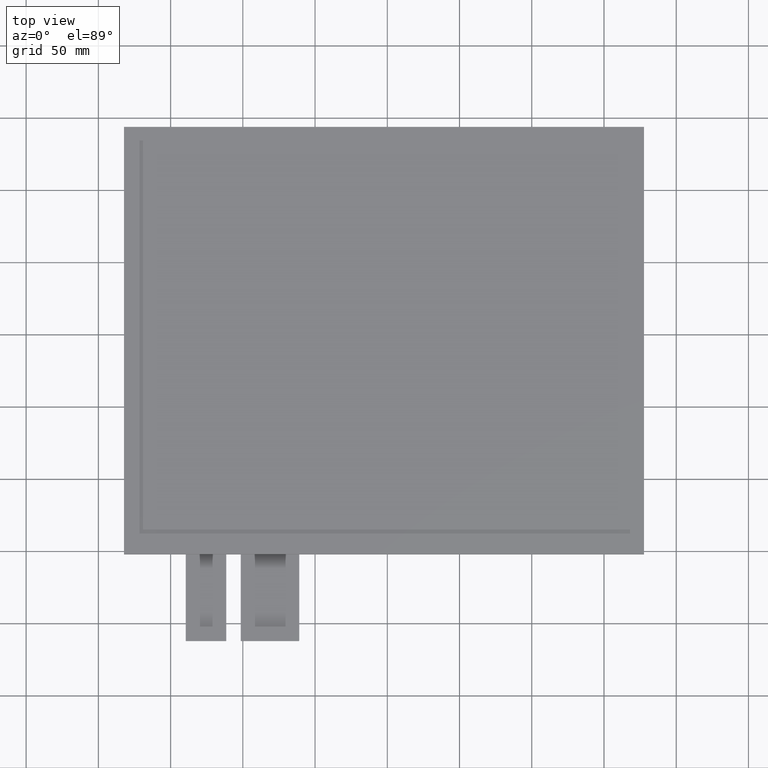
[diagram: clean part render]
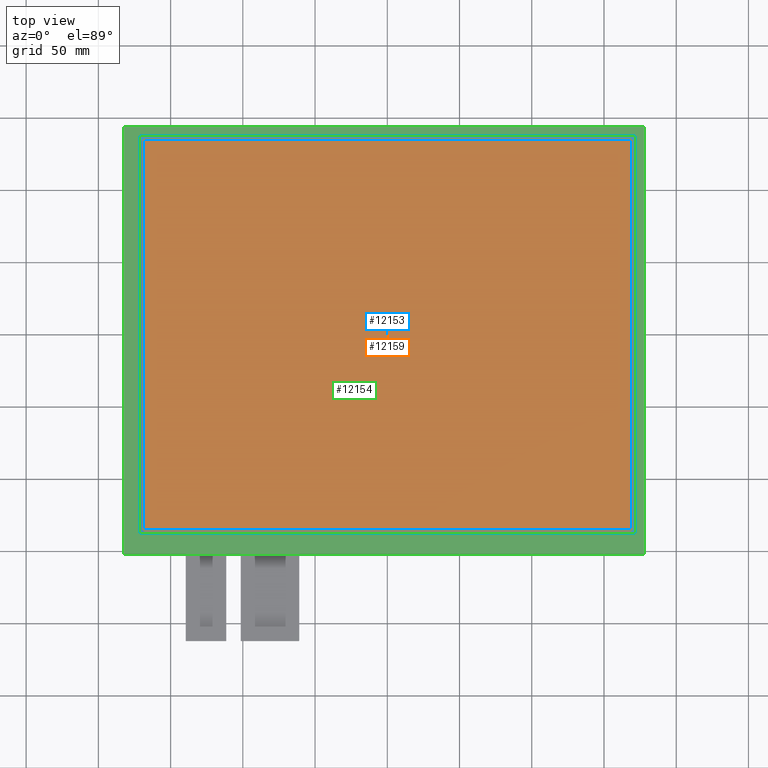
[diagram: same view with three faces highlighted in distinct colors, each labeled with its STEP entity id]
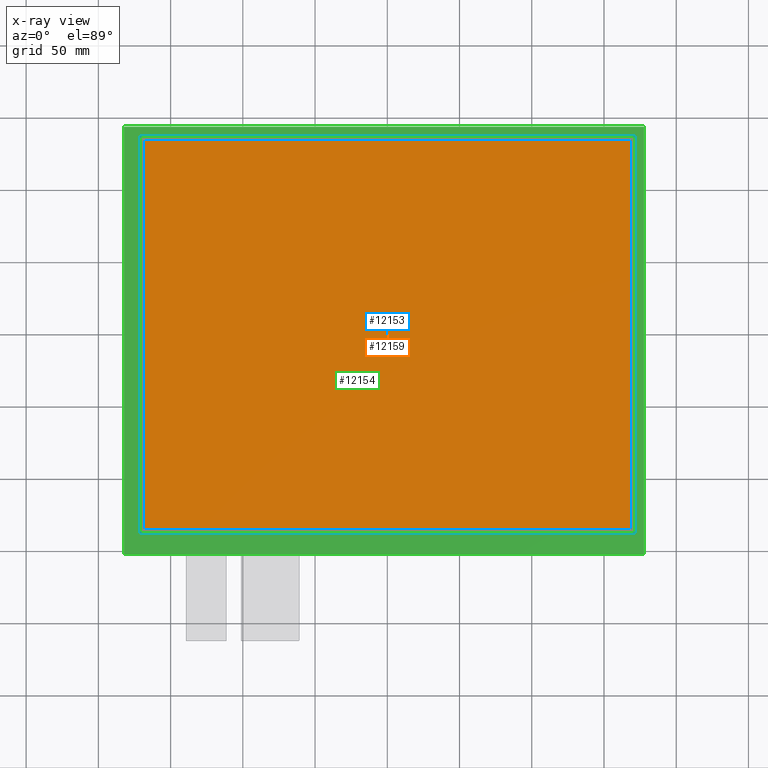
[diagram: x-ray of the same camera — body ghosted, the three highlighted faces saturated]
A machine part, top view with three faces highlighted in distinct colors.
The next image is the same camera in x-ray (body ghosted, the three faces saturated) — at least one of them is partly hidden behind the body in this view.
Their STEP definitions:

[orange] entity #12159 — the highlighted planar face has unit normal (0, 0, 1).
#701=PLANE('',#12765);
#1279=FACE_OUTER_BOUND('',#1861,.T.);
#1861=EDGE_LOOP('',(#11571,#11572,#11573,#11574));
#3535=LINE('',#19015,#5243);
#3539=LINE('',#19023,#5247);
#3542=LINE('',#19029,#5250);
#3545=LINE('',#19034,#5253);
#5243=VECTOR('',#15583,10.);
#5247=VECTOR('',#15589,10.);
#5250=VECTOR('',#15594,10.);
#5253=VECTOR('',#15599,10.);
#6407=VERTEX_POINT('',#19013);
#6408=VERTEX_POINT('',#19014);
#6411=VERTEX_POINT('',#19022);
#6413=VERTEX_POINT('',#19028);
#8111=EDGE_CURVE('',#6407,#6408,#3535,.T.);
#8115=EDGE_CURVE('',#6411,#6407,#3539,.T.);
#8118=EDGE_CURVE('',#6413,#6411,#3542,.T.);
#8121=EDGE_CURVE('',#6408,#6413,#3545,.T.);
#11571=ORIENTED_EDGE('',*,*,#8111,.T.);
#11572=ORIENTED_EDGE('',*,*,#8121,.T.);
#11573=ORIENTED_EDGE('',*,*,#8118,.T.);
#11574=ORIENTED_EDGE('',*,*,#8115,.T.);
#12159=ADVANCED_FACE('',(#1279),#701,.T.);
#12765=AXIS2_PLACEMENT_3D('',#19086,#15645,#15646);
#15583=DIRECTION('',(1.,0.,0.));
#15589=DIRECTION('',(0.,-1.,0.));
#15594=DIRECTION('',(-1.,0.,0.));
#15599=DIRECTION('',(0.,1.,0.));
#15645=DIRECTION('center_axis',(0.,0.,1.));
#15646=DIRECTION('ref_axis',(1.,0.,0.));
#19013=CARTESIAN_POINT('',(-169.,-135.2,0.));
#19014=CARTESIAN_POINT('',(169.,-135.2,0.));
#19015=CARTESIAN_POINT('',(-85.64,-135.2,0.));
#19022=CARTESIAN_POINT('',(-169.,135.2,0.));
#19023=CARTESIAN_POINT('',(-169.,65.525,0.));
#19028=CARTESIAN_POINT('',(169.,135.2,0.));
#19029=CARTESIAN_POINT('',(83.36,135.2,0.));
#19034=CARTESIAN_POINT('',(169.,-69.675,0.));
#19086=CARTESIAN_POINT('Origin',(-2.28000000000005,-4.14999999999997,0.));

[blue] entity #12153 — the highlighted planar face has unit normal (0, 0, -1).
#125=FACE_BOUND('',#1852,.T.);
#695=PLANE('',#12759);
#1273=FACE_OUTER_BOUND('',#1851,.T.);
#1851=EDGE_LOOP('',(#11531,#11532,#11533,#11534));
#1852=EDGE_LOOP('',(#11535,#11536,#11537,#11538));
#3537=LINE('',#19019,#5245);
#3541=LINE('',#19026,#5249);
#3544=LINE('',#19032,#5252);
#3546=LINE('',#19035,#5254);
#3549=LINE('',#19043,#5257);
#3553=LINE('',#19050,#5261);
#3556=LINE('',#19056,#5264);
#3558=LINE('',#19059,#5266);
#5245=VECTOR('',#15585,10.);
#5249=VECTOR('',#15591,10.);
#5252=VECTOR('',#15596,10.);
#5254=VECTOR('',#15600,10.);
#5257=VECTOR('',#15605,10.);
#5261=VECTOR('',#15611,10.);
#5264=VECTOR('',#15616,10.);
#5266=VECTOR('',#15620,10.);
#6409=VERTEX_POINT('',#19016);
#6410=VERTEX_POINT('',#19018);
#6412=VERTEX_POINT('',#19024);
#6414=VERTEX_POINT('',#19030);
#6417=VERTEX_POINT('',#19040);
#6418=VERTEX_POINT('',#19042);
#6420=VERTEX_POINT('',#19048);
#6422=VERTEX_POINT('',#19054);
#8113=EDGE_CURVE('',#6409,#6410,#3537,.T.);
#8117=EDGE_CURVE('',#6412,#6409,#3541,.T.);
#8120=EDGE_CURVE('',#6414,#6412,#3544,.T.);
#8122=EDGE_CURVE('',#6410,#6414,#3546,.T.);
#8125=EDGE_CURVE('',#6417,#6418,#3549,.T.);
#8129=EDGE_CURVE('',#6420,#6417,#3553,.T.);
#8132=EDGE_CURVE('',#6422,#6420,#3556,.T.);
#8134=EDGE_CURVE('',#6418,#6422,#3558,.T.);
#11531=ORIENTED_EDGE('',*,*,#8134,.F.);
#11532=ORIENTED_EDGE('',*,*,#8125,.F.);
#11533=ORIENTED_EDGE('',*,*,#8129,.F.);
#11534=ORIENTED_EDGE('',*,*,#8132,.F.);
#11535=ORIENTED_EDGE('',*,*,#8122,.F.);
#11536=ORIENTED_EDGE('',*,*,#8113,.F.);
#11537=ORIENTED_EDGE('',*,*,#8117,.F.);
#11538=ORIENTED_EDGE('',*,*,#8120,.F.);
#12153=ADVANCED_FACE('',(#1273,#125),#695,.F.);
#12759=AXIS2_PLACEMENT_3D('',#19060,#15621,#15622);
#15585=DIRECTION('',(1.,0.,0.));
#15591=DIRECTION('',(0.,-1.,0.));
#15596=DIRECTION('',(-1.,0.,0.));
#15600=DIRECTION('',(0.,1.,0.));
#15605=DIRECTION('',(-2.5772315406605E-16,1.,0.));
#15611=DIRECTION('',(-1.,-1.55230717104595E-16,0.));
#15616=DIRECTION('',(0.,-1.,0.));
#15620=DIRECTION('',(1.,5.17435723681984E-17,0.));
#15621=DIRECTION('center_axis',(0.,0.,-1.));
#15622=DIRECTION('ref_axis',(-1.,0.,0.));
#19016=CARTESIAN_POINT('',(-169.,-135.2,-0.1));
#19018=CARTESIAN_POINT('',(169.,-135.2,-0.1));
#19019=CARTESIAN_POINT('',(169.,-135.2,-0.1));
#19024=CARTESIAN_POINT('',(-169.,135.2,-0.1));
#19026=CARTESIAN_POINT('',(-169.,-135.2,-0.1));
#19030=CARTESIAN_POINT('',(169.,135.2,-0.1));
#19032=CARTESIAN_POINT('',(-169.,135.2,-0.1));
#19035=CARTESIAN_POINT('',(169.,135.2,-0.1));
#19040=CARTESIAN_POINT('',(-171.65,-137.85,-0.1));
#19042=CARTESIAN_POINT('',(-171.65,137.85,-0.1));
#19043=CARTESIAN_POINT('',(-171.65,137.85,-0.1));
#19048=CARTESIAN_POINT('',(171.65,-137.85,-0.1));
#19050=CARTESIAN_POINT('',(-171.65,-137.85,-0.1));
#19054=CARTESIAN_POINT('',(171.65,137.85,-0.1));
#19056=CARTESIAN_POINT('',(171.65,-137.85,-0.1));
#19059=CARTESIAN_POINT('',(171.65,137.85,-0.1));
#19060=CARTESIAN_POINT('Origin',(-3.5527136788005E-14,1.77635683940025E-14,
-0.1));

[green] entity #12154 — the highlighted planar face has unit normal (0, 0, 1).
#126=FACE_BOUND('',#1854,.T.);
#696=PLANE('',#12760);
#1274=FACE_OUTER_BOUND('',#1853,.T.);
#1853=EDGE_LOOP('',(#11539,#11540,#11541,#11542));
#1854=EDGE_LOOP('',(#11543,#11544,#11545,#11546));
#3547=LINE('',#19039,#5255);
#3551=LINE('',#19047,#5259);
#3554=LINE('',#19053,#5262);
#3557=LINE('',#19058,#5265);
#3559=LINE('',#19064,#5267);
#3560=LINE('',#19066,#5268);
#3561=LINE('',#19068,#5269);
#3562=LINE('',#19069,#5270);
#5255=VECTOR('',#15603,10.);
#5259=VECTOR('',#15609,10.);
#5262=VECTOR('',#15614,10.);
#5265=VECTOR('',#15619,10.);
#5267=VECTOR('',#15625,10.);
#5268=VECTOR('',#15626,10.);
#5269=VECTOR('',#15627,10.);
#5270=VECTOR('',#15628,10.);
#6415=VERTEX_POINT('',#19037);
#6416=VERTEX_POINT('',#19038);
#6419=VERTEX_POINT('',#19046);
#6421=VERTEX_POINT('',#19052);
#6423=VERTEX_POINT('',#19062);
#6424=VERTEX_POINT('',#19063);
#6425=VERTEX_POINT('',#19065);
#6426=VERTEX_POINT('',#19067);
#8123=EDGE_CURVE('',#6415,#6416,#3547,.T.);
#8127=EDGE_CURVE('',#6419,#6415,#3551,.T.);
#8130=EDGE_CURVE('',#6421,#6419,#3554,.T.);
#8133=EDGE_CURVE('',#6416,#6421,#3557,.T.);
#8135=EDGE_CURVE('',#6423,#6424,#3559,.T.);
#8136=EDGE_CURVE('',#6424,#6425,#3560,.T.);
#8137=EDGE_CURVE('',#6425,#6426,#3561,.T.);
#8138=EDGE_CURVE('',#6426,#6423,#3562,.T.);
#11539=ORIENTED_EDGE('',*,*,#8135,.T.);
#11540=ORIENTED_EDGE('',*,*,#8136,.T.);
#11541=ORIENTED_EDGE('',*,*,#8137,.T.);
#11542=ORIENTED_EDGE('',*,*,#8138,.T.);
#11543=ORIENTED_EDGE('',*,*,#8123,.T.);
#11544=ORIENTED_EDGE('',*,*,#8133,.T.);
#11545=ORIENTED_EDGE('',*,*,#8130,.T.);
#11546=ORIENTED_EDGE('',*,*,#8127,.T.);
#12154=ADVANCED_FACE('',(#1274,#126),#696,.T.);
#12760=AXIS2_PLACEMENT_3D('',#19061,#15623,#15624);
#15603=DIRECTION('',(-2.5772315406605E-16,1.,0.));
#15609=DIRECTION('',(-1.,-1.55230717104595E-16,0.));
#15614=DIRECTION('',(0.,-1.,0.));
#15619=DIRECTION('',(1.,5.17435723681984E-17,0.));
#15623=DIRECTION('center_axis',(0.,0.,1.));
#15624=DIRECTION('ref_axis',(1.,0.,0.));
#15625=DIRECTION('',(-1.,0.,0.));
#15626=DIRECTION('',(2.40048221540574E-16,-1.,0.));
#15627=DIRECTION('',(1.,9.86864910777917E-17,0.));
#15628=DIRECTION('',(-1.20024110770287E-16,1.,0.));
#19037=CARTESIAN_POINT('',(-171.65,-137.85,0.));
#19038=CARTESIAN_POINT('',(-171.65,137.85,0.));
#19039=CARTESIAN_POINT('',(-171.65,-71.,0.));
#19046=CARTESIAN_POINT('',(171.65,-137.85,0.));
#19047=CARTESIAN_POINT('',(84.685,-137.85,0.));
#19052=CARTESIAN_POINT('',(171.65,137.85,0.));
#19053=CARTESIAN_POINT('',(171.65,66.85,0.));
#19058=CARTESIAN_POINT('',(-86.9650000000001,137.85,0.));
#19061=CARTESIAN_POINT('Origin',(-2.28000000000005,-4.14999999999997,0.));
#19062=CARTESIAN_POINT('',(177.72,143.85,0.));
#19063=CARTESIAN_POINT('',(-182.28,143.85,0.));
#19064=CARTESIAN_POINT('',(177.72,143.85,0.));
#19065=CARTESIAN_POINT('',(-182.28,-152.15,0.));
#19066=CARTESIAN_POINT('',(-182.28,143.85,0.));
#19067=CARTESIAN_POINT('',(177.72,-152.15,0.));
#19068=CARTESIAN_POINT('',(-182.28,-152.15,0.));
#19069=CARTESIAN_POINT('',(177.72,-152.15,0.));